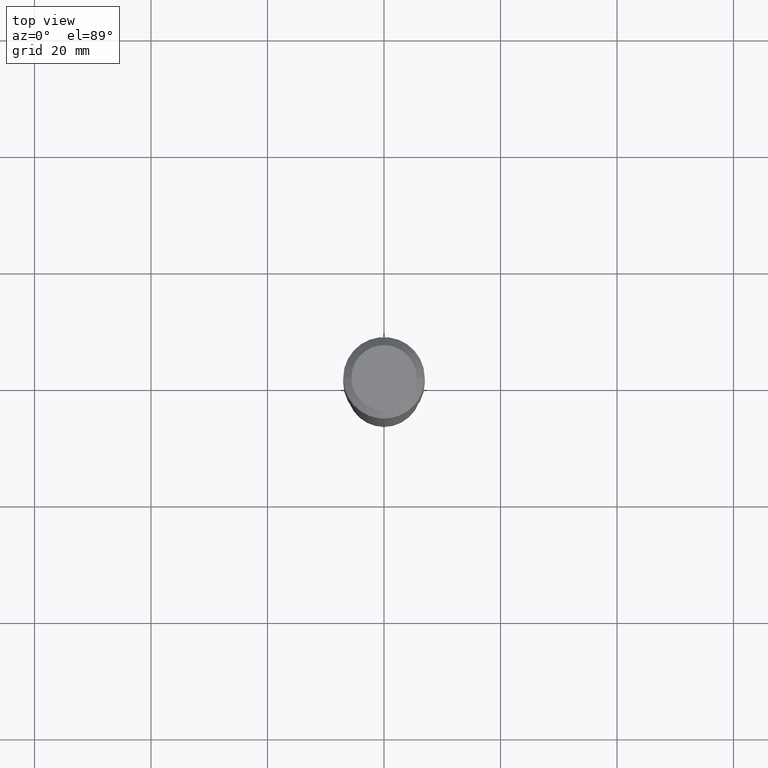
[diagram: clean part render]
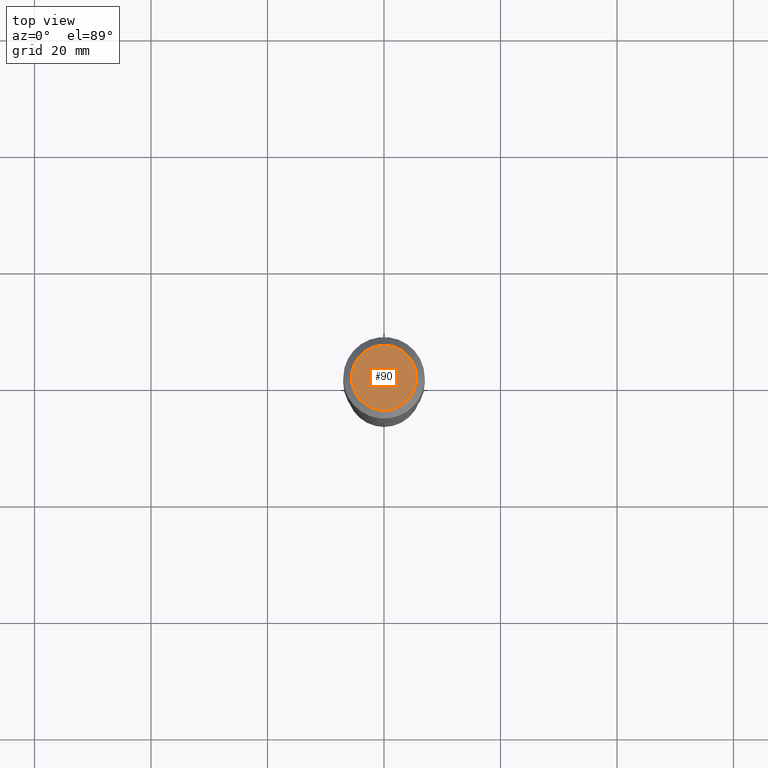
[diagram: same view with one face highlighted and labeled with its STEP entity id]
A machine part, top view. The second image highlights one B-rep face of the part: STEP entity #90.
In plain terms, the highlighted planar face has unit normal (0, -0, -1).
Its self-contained STEP definition (entity closure, byte-faithful):
#9 = CIRCLE ( 'NONE', #465, 0.2204800000000000093 ) ;
#14 = AXIS2_PLACEMENT_3D ( 'NONE', #433, #102, #438 ) ;
#26 = CARTESIAN_POINT ( 'NONE',  ( -0.2204800000000000093, 1.635828836874783961E-15, 3.860086710901350968E-18 ) ) ;
#70 = CARTESIAN_POINT ( 'NONE',  ( 0.2204800000000000093, -1.797903149065768707E-15, 3.860086710924123164E-18 ) ) ;
#90 = ADVANCED_FACE ( 'NONE', ( #483 ), #272, .F. ) ;
#102 = DIRECTION ( 'NONE',  ( -2.445468806185136597E-29, 3.491481338843145583E-15, 1.000000000000000000 ) ) ;
#136 = EDGE_LOOP ( 'NONE', ( #226, #183 ) ) ;
#137 = EDGE_CURVE ( 'NONE', #437, #186, #242, .T. ) ;
#153 = DIRECTION ( 'NONE',  ( -2.445468806185136597E-29, 3.491481338843145583E-15, 1.000000000000000000 ) ) ;
#158 = CARTESIAN_POINT ( 'NONE',  ( -4.719860820353095009E-47, 6.738710358733624243E-33, 1.930043355456227170E-18 ) ) ;
#176 = AXIS2_PLACEMENT_3D ( 'NONE', #158, #241, #305 ) ;
#183 = ORIENTED_EDGE ( 'NONE', *, *, #137, .T. ) ;
#186 = VERTEX_POINT ( 'NONE', #26 ) ;
#226 = ORIENTED_EDGE ( 'NONE', *, *, #449, .T. ) ;
#241 = DIRECTION ( 'NONE',  ( 2.438088387897960049E-29, -3.491481338843145188E-15, -1.000000000000000000 ) ) ;
#242 = CIRCLE ( 'NONE', #14, 0.2204800000000000093 ) ;
#272 = PLANE ( 'NONE',  #176 ) ;
#278 = DIRECTION ( 'NONE',  ( 1.000000000000000000, -6.982962677686266711E-15, 4.876132675269083677E-29 ) ) ;
#305 = DIRECTION ( 'NONE',  ( -1.000000000000000000, 6.982962677686265922E-15, -4.876176775795935793E-29 ) ) ;
#433 = CARTESIAN_POINT ( 'NONE',  ( -9.439721640706190018E-47, 1.347742071746724849E-32, 3.860086710912454339E-18 ) ) ;
#437 = VERTEX_POINT ( 'NONE', #70 ) ;
#438 = DIRECTION ( 'NONE',  ( 1.000000000000000000, -6.982962677686266711E-15, 4.876132675269083677E-29 ) ) ;
#449 = EDGE_CURVE ( 'NONE', #186, #437, #9, .T. ) ;
#465 = AXIS2_PLACEMENT_3D ( 'NONE', #479, #153, #278 ) ;
#479 = CARTESIAN_POINT ( 'NONE',  ( -9.439721640706190018E-47, 1.347742071746724849E-32, 3.860086710912454339E-18 ) ) ;
#483 = FACE_OUTER_BOUND ( 'NONE', #136, .T. ) ;